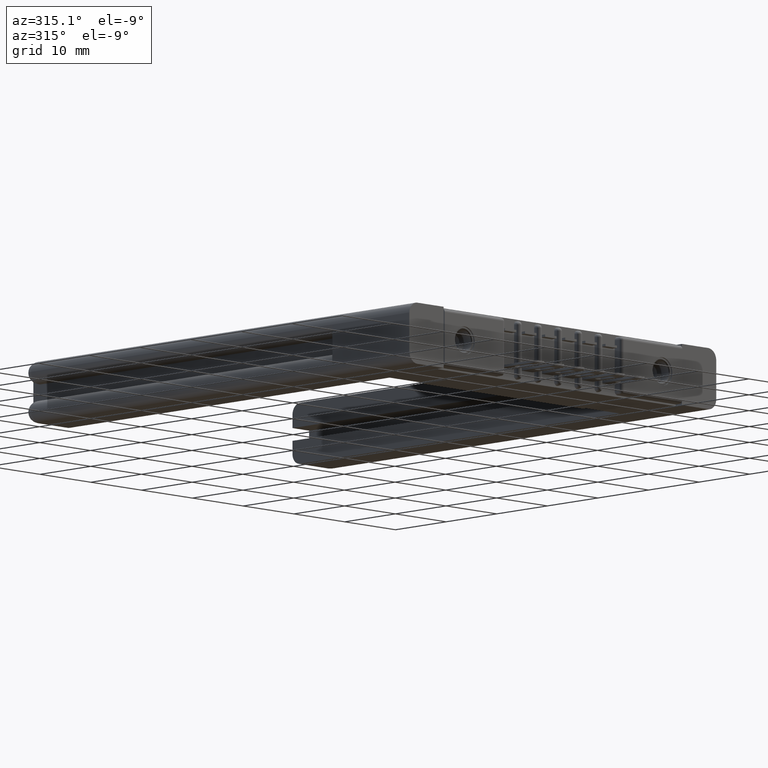
[diagram: clean part render]
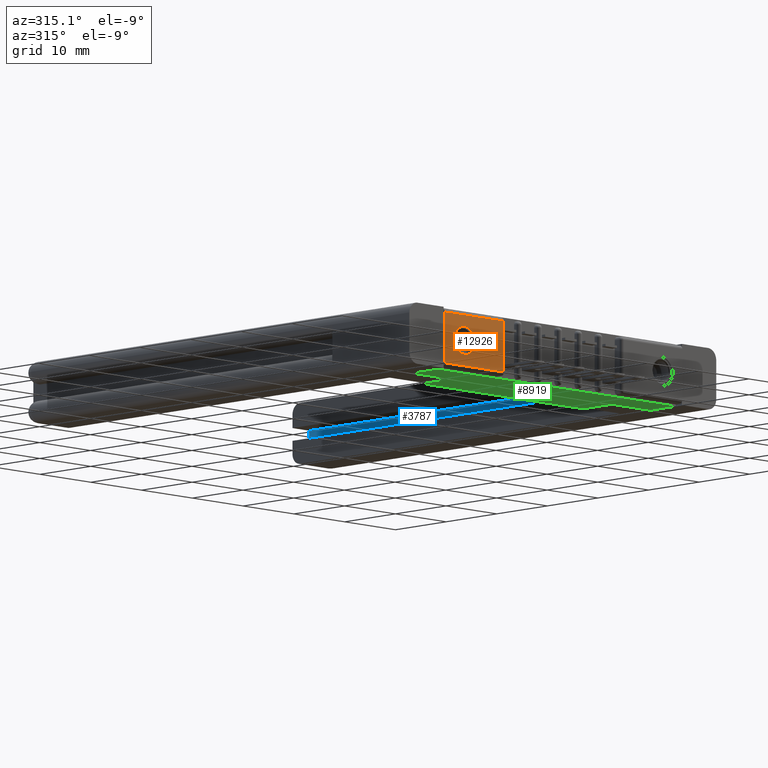
[diagram: same view with three faces highlighted in distinct colors, each labeled with its STEP entity id]
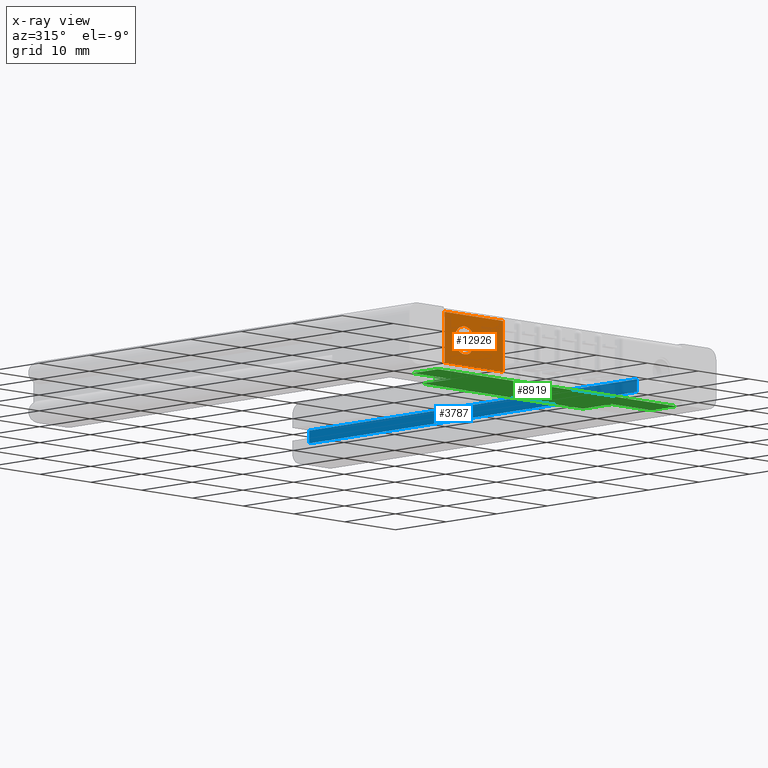
[diagram: x-ray of the same camera — body ghosted, the three highlighted faces saturated]
A machine part, auxiliary view with three faces highlighted in distinct colors.
The next image is the same camera in x-ray (body ghosted, the three faces saturated) — at least one of them is partly hidden behind the body in this view.
Their STEP definitions:

[orange] entity #12926 — the highlighted planar face has unit normal (0, -1, 0).
#127 = CARTESIAN_POINT ( 'NONE',  ( 0.1550000000000003900, 0.0000000000000000000, -0.1715000000000000700 ) ) ;
#162 = VECTOR ( 'NONE', #4011, 39.37007874015748100 ) ;
#326 = FACE_BOUND ( 'NONE', #3669, .T. ) ;
#683 = VECTOR ( 'NONE', #4808, 39.37007874015748100 ) ;
#713 = LINE ( 'NONE', #7441, #8431 ) ;
#720 = AXIS2_PLACEMENT_3D ( 'NONE', #127, #4120, #7019 ) ;
#1177 = CARTESIAN_POINT ( 'NONE',  ( 0.4529999999999999000, 0.0000000000000000000, -0.03000000000000008900 ) ) ;
#1367 = CARTESIAN_POINT ( 'NONE',  ( 0.0000000000000000000, 0.0000000000000000000, -0.3130000000000001100 ) ) ;
#1609 = DIRECTION ( 'NONE',  ( 0.0000000000000000000, -1.000000000000000000, 0.0000000000000000000 ) ) ;
#1836 = CARTESIAN_POINT ( 'NONE',  ( 0.0000000000000000000, 0.0000000000000000000, -0.3430000000000000300 ) ) ;
#2092 = CARTESIAN_POINT ( 'NONE',  ( 0.0000000000000000000, 0.0000000000000000000, -0.3130000000000001100 ) ) ;
#2336 = VECTOR ( 'NONE', #8321, 39.37007874015748100 ) ;
#2486 = LINE ( 'NONE', #1367, #2336 ) ;
#2524 = VERTEX_POINT ( 'NONE', #2092 ) ;
#2532 = EDGE_CURVE ( 'NONE', #4443, #12672, #5332, .T. ) ;
#2740 = PLANE ( 'NONE',  #3352 ) ;
#3352 = AXIS2_PLACEMENT_3D ( 'NONE', #1836, #4666, #7832 ) ;
#3669 = EDGE_LOOP ( 'NONE', ( #6617, #10661 ) ) ;
#3815 = CIRCLE ( 'NONE', #12412, 0.07800000000000000000 ) ;
#4011 = DIRECTION ( 'NONE',  ( -1.592914282019978200E-015, -0.0000000000000000000, 1.000000000000000000 ) ) ;
#4046 = CARTESIAN_POINT ( 'NONE',  ( 0.1550000000000003900, 0.0000000000000000000, -0.09350000000000006900 ) ) ;
#4120 = DIRECTION ( 'NONE',  ( 0.0000000000000000000, -1.000000000000000000, 0.0000000000000000000 ) ) ;
#4204 = VERTEX_POINT ( 'NONE', #9860 ) ;
#4443 = VERTEX_POINT ( 'NONE', #9167 ) ;
#4508 = CARTESIAN_POINT ( 'NONE',  ( 0.1550000000000003900, 0.0000000000000000000, -0.1715000000000000700 ) ) ;
#4666 = DIRECTION ( 'NONE',  ( 0.0000000000000000000, -1.000000000000000000, 0.0000000000000000000 ) ) ;
#4808 = DIRECTION ( 'NONE',  ( -0.0000000000000000000, -0.0000000000000000000, 1.000000000000000000 ) ) ;
#4900 = EDGE_LOOP ( 'NONE', ( #12799, #9316, #9300, #12511 ) ) ;
#5141 = EDGE_CURVE ( 'NONE', #2524, #10472, #2486, .T. ) ;
#5332 = CIRCLE ( 'NONE', #720, 0.07800000000000000000 ) ;
#6507 = LINE ( 'NONE', #12738, #683 ) ;
#6617 = ORIENTED_EDGE ( 'NONE', *, *, #2532, .F. ) ;
#7019 = DIRECTION ( 'NONE',  ( 0.0000000000000000000, 0.0000000000000000000, -1.000000000000000000 ) ) ;
#7441 = CARTESIAN_POINT ( 'NONE',  ( 1.083812417245411700E-017, 0.0000000000000000000, -0.03000000000000006500 ) ) ;
#7678 = EDGE_CURVE ( 'NONE', #4204, #10478, #713, .T. ) ;
#7832 = DIRECTION ( 'NONE',  ( 0.0000000000000000000, -0.0000000000000000000, -1.000000000000000000 ) ) ;
#8321 = DIRECTION ( 'NONE',  ( 1.000000000000000000, 0.0000000000000000000, 0.0000000000000000000 ) ) ;
#8431 = VECTOR ( 'NONE', #10445, 39.37007874015748100 ) ;
#8805 = FACE_OUTER_BOUND ( 'NONE', #4900, .T. ) ;
#8974 = EDGE_CURVE ( 'NONE', #2524, #10478, #6507, .T. ) ;
#9109 = EDGE_CURVE ( 'NONE', #12672, #4443, #3815, .T. ) ;
#9167 = CARTESIAN_POINT ( 'NONE',  ( 0.1550000000000003900, 0.0000000000000000000, -0.2495000000000000600 ) ) ;
#9300 = ORIENTED_EDGE ( 'NONE', *, *, #8974, .F. ) ;
#9316 = ORIENTED_EDGE ( 'NONE', *, *, #7678, .T. ) ;
#9601 = LINE ( 'NONE', #1177, #162 ) ;
#9798 = CARTESIAN_POINT ( 'NONE',  ( 0.0000000000000000000, 0.0000000000000000000, -0.03000000000000006500 ) ) ;
#9860 = CARTESIAN_POINT ( 'NONE',  ( 0.4529999999999999000, 0.0000000000000000000, -0.03000000000000007200 ) ) ;
#10445 = DIRECTION ( 'NONE',  ( -1.000000000000000000, -0.0000000000000000000, 0.0000000000000000000 ) ) ;
#10472 = VERTEX_POINT ( 'NONE', #11774 ) ;
#10478 = VERTEX_POINT ( 'NONE', #9798 ) ;
#10559 = DIRECTION ( 'NONE',  ( 0.0000000000000000000, 0.0000000000000000000, -1.000000000000000000 ) ) ;
#10661 = ORIENTED_EDGE ( 'NONE', *, *, #9109, .F. ) ;
#10743 = EDGE_CURVE ( 'NONE', #10472, #4204, #9601, .T. ) ;
#11774 = CARTESIAN_POINT ( 'NONE',  ( 0.4530000000000003500, 0.0000000000000000000, -0.3130000000000001100 ) ) ;
#12412 = AXIS2_PLACEMENT_3D ( 'NONE', #4508, #1609, #10559 ) ;
#12511 = ORIENTED_EDGE ( 'NONE', *, *, #5141, .T. ) ;
#12672 = VERTEX_POINT ( 'NONE', #4046 ) ;
#12738 = CARTESIAN_POINT ( 'NONE',  ( 0.0000000000000000000, 0.0000000000000000000, 0.0000000000000000000 ) ) ;
#12799 = ORIENTED_EDGE ( 'NONE', *, *, #10743, .T. ) ;
#12926 = ADVANCED_FACE ( 'NONE', ( #326, #8805 ), #2740, .T. ) ;

[blue] entity #3787 — the highlighted planar face has unit normal (1, 0, 0).
#9 = VECTOR ( 'NONE', #6409, 39.37007874015748100 ) ;
#159 = EDGE_CURVE ( 'NONE', #2970, #11791, #9333, .T. ) ;
#196 = ORIENTED_EDGE ( 'NONE', *, *, #10025, .T. ) ;
#787 = CARTESIAN_POINT ( 'NONE',  ( 0.1659999999999998100, 0.4500000000000001200, -0.1345000000000013700 ) ) ;
#865 = DIRECTION ( 'NONE',  ( -4.510281037539688600E-017, 2.334284690065025700E-016, -1.000000000000000000 ) ) ;
#1049 = CARTESIAN_POINT ( 'NONE',  ( 0.1659999999999998100, 0.4500000000000001200, -0.1345000000000013700 ) ) ;
#1570 = CARTESIAN_POINT ( 'NONE',  ( 0.1660000000000030900, 3.000000000000006700, -0.1345000000000018100 ) ) ;
#2796 = PLANE ( 'NONE',  #4946 ) ;
#2970 = VERTEX_POINT ( 'NONE', #9673 ) ;
#3619 = LINE ( 'NONE', #5739, #12577 ) ;
#3712 = VERTEX_POINT ( 'NONE', #787 ) ;
#3731 = EDGE_LOOP ( 'NONE', ( #8598, #9671, #196, #4017 ) ) ;
#3787 = ADVANCED_FACE ( 'NONE', ( #12557 ), #2796, .F. ) ;
#4017 = ORIENTED_EDGE ( 'NONE', *, *, #10609, .T. ) ;
#4079 = CARTESIAN_POINT ( 'NONE',  ( 0.1660000000000030900, 3.000000000000006700, -0.2055000000000017600 ) ) ;
#4946 = AXIS2_PLACEMENT_3D ( 'NONE', #10821, #5832, #7766 ) ;
#5500 = DIRECTION ( 'NONE',  ( 5.915108984173514200E-016, 1.000000000000000000, -2.334284690065039000E-016 ) ) ;
#5739 = CARTESIAN_POINT ( 'NONE',  ( 0.1659999999999998100, 0.4500000000000001200, -0.1345000000000013700 ) ) ;
#5832 = DIRECTION ( 'NONE',  ( -1.000000000000000000, 5.915108984173514200E-016, -4.510281037539700900E-017 ) ) ;
#6409 = DIRECTION ( 'NONE',  ( 4.510281037539688600E-017, -2.334284690065025700E-016, 1.000000000000000000 ) ) ;
#7716 = LINE ( 'NONE', #10442, #9 ) ;
#7766 = DIRECTION ( 'NONE',  ( -5.915108984173514200E-016, -1.000000000000000000, 2.334284690065039000E-016 ) ) ;
#8598 = ORIENTED_EDGE ( 'NONE', *, *, #159, .T. ) ;
#9333 = LINE ( 'NONE', #9511, #11353 ) ;
#9511 = CARTESIAN_POINT ( 'NONE',  ( 0.1660000000000000900, 0.4500000000000001200, -0.2055000000000013200 ) ) ;
#9671 = ORIENTED_EDGE ( 'NONE', *, *, #10304, .T. ) ;
#9673 = CARTESIAN_POINT ( 'NONE',  ( 0.1660000000000000900, 0.4500000000000001200, -0.2055000000000013200 ) ) ;
#10025 = EDGE_CURVE ( 'NONE', #12242, #3712, #11638, .T. ) ;
#10090 = VECTOR ( 'NONE', #10111, 39.37007874015748100 ) ;
#10111 = DIRECTION ( 'NONE',  ( -5.915108984173514200E-016, -1.000000000000000000, 2.334284690065039000E-016 ) ) ;
#10304 = EDGE_CURVE ( 'NONE', #11791, #12242, #7716, .T. ) ;
#10442 = CARTESIAN_POINT ( 'NONE',  ( 0.1660000000000030900, 3.000000000000006700, -0.1345000000000018100 ) ) ;
#10609 = EDGE_CURVE ( 'NONE', #3712, #2970, #3619, .T. ) ;
#10821 = CARTESIAN_POINT ( 'NONE',  ( 0.1660000000000030900, 3.000000000000006700, -0.2055000000000017600 ) ) ;
#11353 = VECTOR ( 'NONE', #5500, 39.37007874015748100 ) ;
#11638 = LINE ( 'NONE', #1049, #10090 ) ;
#11791 = VERTEX_POINT ( 'NONE', #4079 ) ;
#12242 = VERTEX_POINT ( 'NONE', #1570 ) ;
#12557 = FACE_OUTER_BOUND ( 'NONE', #3731, .T. ) ;
#12577 = VECTOR ( 'NONE', #865, 39.37007874015748100 ) ;

[green] entity #8919 — the highlighted planar face has unit normal (0, 0, 1).
#13 = EDGE_CURVE ( 'NONE', #5551, #12003, #8719, .T. ) ;
#344 = VECTOR ( 'NONE', #10505, 39.37007874015748100 ) ;
#388 = CARTESIAN_POINT ( 'NONE',  ( 0.4730000000000003600, 0.05099999999999999700, -0.3430000000000001400 ) ) ;
#728 = ORIENTED_EDGE ( 'NONE', *, *, #3466, .F. ) ;
#791 = LINE ( 'NONE', #12733, #9128 ) ;
#989 = CARTESIAN_POINT ( 'NONE',  ( 1.842000000000000700, 0.05099999999999999700, -0.3430000000000000300 ) ) ;
#1036 = VERTEX_POINT ( 'NONE', #10311 ) ;
#1041 = ORIENTED_EDGE ( 'NONE', *, *, #8899, .F. ) ;
#1605 = CARTESIAN_POINT ( 'NONE',  ( 1.544000000000000700, 0.2499999999999999700, -0.3430000000000000300 ) ) ;
#1770 = EDGE_CURVE ( 'NONE', #2466, #5551, #10992, .T. ) ;
#1779 = DIRECTION ( 'NONE',  ( 0.0000000000000000000, 0.0000000000000000000, 1.000000000000000000 ) ) ;
#2031 = CARTESIAN_POINT ( 'NONE',  ( 1.842000000000000700, 0.4729999999999999800, -0.3430000000000000300 ) ) ;
#2052 = VECTOR ( 'NONE', #11751, 39.37007874015748100 ) ;
#2290 = DIRECTION ( 'NONE',  ( -1.000000000000000000, -0.0000000000000000000, -0.0000000000000000000 ) ) ;
#2446 = CARTESIAN_POINT ( 'NONE',  ( 0.0000000000000000000, 0.4729999999999999800, -0.3430000000000000300 ) ) ;
#2466 = VERTEX_POINT ( 'NONE', #12993 ) ;
#2801 = DIRECTION ( 'NONE',  ( 1.000000000000000000, 0.0000000000000000000, -0.0000000000000000000 ) ) ;
#2879 = DIRECTION ( 'NONE',  ( -0.0000000000000000000, -1.000000000000000000, -0.0000000000000000000 ) ) ;
#2973 = ORIENTED_EDGE ( 'NONE', *, *, #12166, .F. ) ;
#3000 = ORIENTED_EDGE ( 'NONE', *, *, #13, .F. ) ;
#3031 = VECTOR ( 'NONE', #3498, 39.37007874015748100 ) ;
#3347 = DIRECTION ( 'NONE',  ( -1.000000000000000000, 0.0000000000000000000, 0.0000000000000000000 ) ) ;
#3466 = EDGE_CURVE ( 'NONE', #12826, #2466, #7695, .T. ) ;
#3498 = DIRECTION ( 'NONE',  ( 1.000000000000000000, 0.0000000000000000000, 0.0000000000000000000 ) ) ;
#4235 = VERTEX_POINT ( 'NONE', #7933 ) ;
#4856 = CARTESIAN_POINT ( 'NONE',  ( 1.544000000000000700, 0.4729999999999999800, -0.3430000000000000300 ) ) ;
#5020 = VECTOR ( 'NONE', #7597, 39.37007874015748100 ) ;
#5241 = FACE_OUTER_BOUND ( 'NONE', #5889, .T. ) ;
#5252 = VERTEX_POINT ( 'NONE', #10617 ) ;
#5451 = CARTESIAN_POINT ( 'NONE',  ( 0.0000000000000000000, 0.4729999999999999800, -0.3430000000000000300 ) ) ;
#5509 = ORIENTED_EDGE ( 'NONE', *, *, #9851, .T. ) ;
#5551 = VERTEX_POINT ( 'NONE', #4856 ) ;
#5573 = ORIENTED_EDGE ( 'NONE', *, *, #1770, .F. ) ;
#5704 = DIRECTION ( 'NONE',  ( -1.000000000000000000, 0.0000000000000000000, 0.0000000000000000000 ) ) ;
#5889 = EDGE_LOOP ( 'NONE', ( #11486, #1041, #2973, #6044, #5509, #3000, #5573, #728 ) ) ;
#6044 = ORIENTED_EDGE ( 'NONE', *, *, #10558, .F. ) ;
#6190 = CARTESIAN_POINT ( 'NONE',  ( 0.2979999999999998200, 0.4729999999999999800, -0.3430000000000000300 ) ) ;
#7597 = DIRECTION ( 'NONE',  ( -0.0000000000000000000, -1.000000000000000000, -0.0000000000000000000 ) ) ;
#7695 = LINE ( 'NONE', #10320, #9272 ) ;
#7712 = LINE ( 'NONE', #2446, #5020 ) ;
#7933 = CARTESIAN_POINT ( 'NONE',  ( 0.2979999999999998200, 0.2499999999999999700, -0.3430000000000000300 ) ) ;
#8244 = LINE ( 'NONE', #388, #3031 ) ;
#8340 = CARTESIAN_POINT ( 'NONE',  ( 1.842000000000000700, 0.2499999999999999700, -0.3430000000000000300 ) ) ;
#8719 = LINE ( 'NONE', #5451, #11042 ) ;
#8837 = CARTESIAN_POINT ( 'NONE',  ( 0.0000000000000000000, 0.4729999999999999800, -0.3430000000000000300 ) ) ;
#8899 = EDGE_CURVE ( 'NONE', #1036, #11101, #8244, .T. ) ;
#8919 = ADVANCED_FACE ( 'NONE', ( #5241 ), #11694, .F. ) ;
#9128 = VECTOR ( 'NONE', #5704, 39.37007874015748100 ) ;
#9272 = VECTOR ( 'NONE', #3347, 39.37007874015748100 ) ;
#9438 = LINE ( 'NONE', #2031, #11441 ) ;
#9553 = AXIS2_PLACEMENT_3D ( 'NONE', #8837, #1779, #2801 ) ;
#9851 = EDGE_CURVE ( 'NONE', #4235, #12003, #10394, .T. ) ;
#10311 = CARTESIAN_POINT ( 'NONE',  ( 0.0000000000000000000, 0.05099999999999999700, -0.3430000000000000300 ) ) ;
#10320 = CARTESIAN_POINT ( 'NONE',  ( 0.0000000000000000000, 0.2499999999999999700, -0.3430000000000000300 ) ) ;
#10394 = LINE ( 'NONE', #12663, #2052 ) ;
#10505 = DIRECTION ( 'NONE',  ( -0.0000000000000000000, 1.000000000000000000, -0.0000000000000000000 ) ) ;
#10558 = EDGE_CURVE ( 'NONE', #4235, #5252, #791, .T. ) ;
#10617 = CARTESIAN_POINT ( 'NONE',  ( 0.0000000000000000000, 0.2499999999999999700, -0.3430000000000000300 ) ) ;
#10992 = LINE ( 'NONE', #1605, #344 ) ;
#11042 = VECTOR ( 'NONE', #2290, 39.37007874015748100 ) ;
#11101 = VERTEX_POINT ( 'NONE', #989 ) ;
#11441 = VECTOR ( 'NONE', #2879, 39.37007874015748100 ) ;
#11486 = ORIENTED_EDGE ( 'NONE', *, *, #12524, .T. ) ;
#11694 = PLANE ( 'NONE',  #9553 ) ;
#11751 = DIRECTION ( 'NONE',  ( -0.0000000000000000000, 1.000000000000000000, -0.0000000000000000000 ) ) ;
#12003 = VERTEX_POINT ( 'NONE', #6190 ) ;
#12166 = EDGE_CURVE ( 'NONE', #5252, #1036, #7712, .T. ) ;
#12524 = EDGE_CURVE ( 'NONE', #12826, #11101, #9438, .T. ) ;
#12663 = CARTESIAN_POINT ( 'NONE',  ( 0.2979999999999998200, 0.2499999999999999700, -0.3430000000000000300 ) ) ;
#12733 = CARTESIAN_POINT ( 'NONE',  ( 0.0000000000000000000, 0.2499999999999999700, -0.3430000000000000300 ) ) ;
#12826 = VERTEX_POINT ( 'NONE', #8340 ) ;
#12993 = CARTESIAN_POINT ( 'NONE',  ( 1.544000000000000700, 0.2499999999999999700, -0.3430000000000000300 ) ) ;